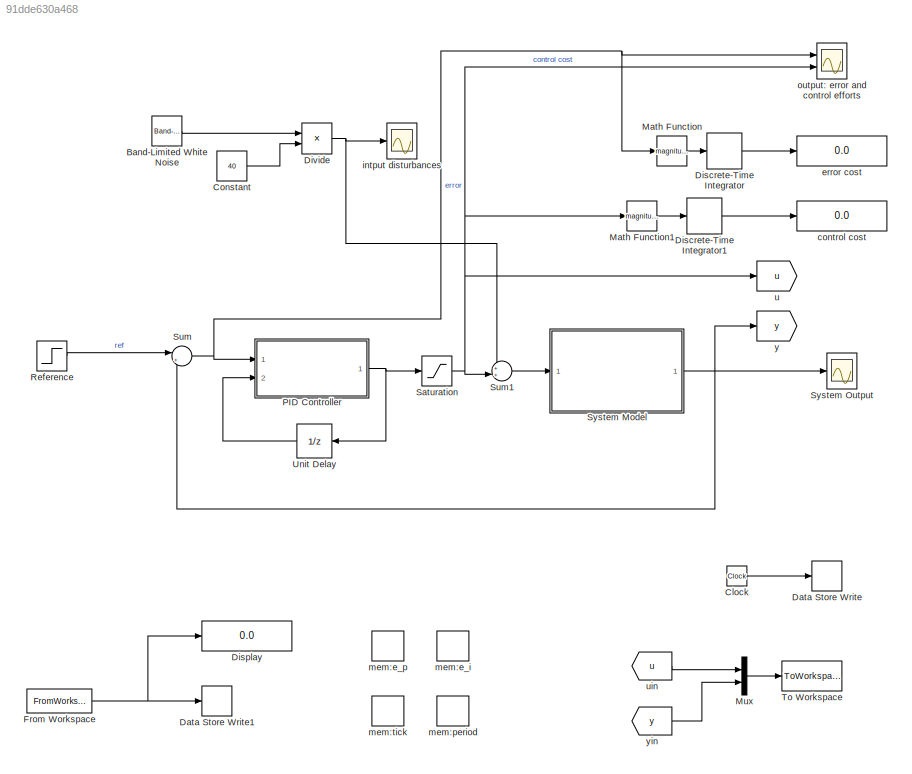
MODEL slx_91dde630a468
KIND model
CONFIG AbsTol = auto
CONFIG FixedStep = 0.001
CONFIG MaxStep = auto
CONFIG MinStep = auto
CONFIG RelTol = 1e-3
CONFIG SampleTimeConstraint = Unconstrained
CONFIG Solver = ode3
CONFIG SolverMode = Auto
CONFIG SolverName = ode3
CONFIG StartTime = 0.0
CONFIG StopTime = 10
BLOCK [Reference] Band-Limited White Noise  REF=simulink/Sources/Band-Limited
White Noise
  Cov = simu_noise_power
  Ports = [0, 1]
  SourceBlock = simulink/Sources/Band-Limited\nWhite Noise
  SourceType = Band-Limited White Noise.
  Ts = 0.001
  VectorParams1D = on
  seed = simu_noise_seed
BLOCK [Clock] Clock
BLOCK [Constant] Constant
  Value = 40
BLOCK [DataStoreWrite] Data Store Write
  DataStoreName = tick
  Ports = [1]
  SampleTime = 0.001
BLOCK [DataStoreWrite] Data Store Write1
  DataStoreName = period
  Ports = [1]
  SampleTime = 0.001
BLOCK [DiscreteIntegrator] Discrete-Time Integrator
  InitialConditionSetting = State (most efficient)
  Ports = [1, 1]
  SampleTime = 0.001
BLOCK [DiscreteIntegrator] Discrete-Time Integrator1
  InitialConditionSetting = State (most efficient)
  Ports = [1, 1]
  SampleTime = 0.001
BLOCK [Display] Display
  Decimation = 1
  Ports = [1]
BLOCK [Product] Divide
  InputSameDT = off
  Inputs = */
  OutDataTypeStr = Inherit: Inherit via internal rule
  Ports = [2, 1]
  RndMeth = Floor
  SaturateOnIntegerOverflow = off
BLOCK [FromWorkspace] From Workspace
  SampleTime = 0
  VariableName = simin
  ZeroCross = on
BLOCK [Math] Math Function
  Operator = magnitude^2
  Ports = [1, 1]
BLOCK [Math] Math Function1
  Operator = magnitude^2
  Ports = [1, 1]
BLOCK [Mux] Mux
  DisplayOption = bar
  Inputs = 2
  Ports = [2, 1]
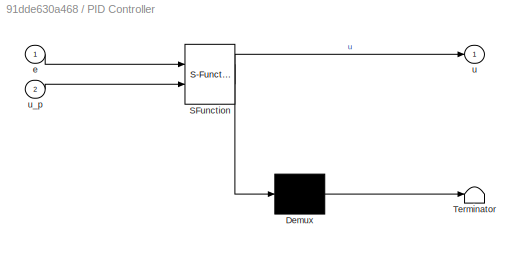
BLOCK [SubSystem] PID Controller
  ErrorFcn = Stateflow.Translate.translate
  PermitHierarchicalResolution = ExplicitOnly
  Ports = [2, 1]
  RequestExecContextInheritance = off
  SFBlockType = MATLAB Function
  TreatAsAtomicUnit = on
BLOCK [Demux] PID Controller/ Demux 
  Outputs = 1
  Ports = [1, 1]
BLOCK [S-Function] PID Controller/ SFunction 
  EnableBusSupport = on
  FunctionName = sf_sfun
  PortCounts = [2 2]
  Ports = [2, 2]
  Tag = Stateflow S-Function main_system 2
BLOCK [Terminator] PID Controller/ Terminator 
BLOCK [Inport] PID Controller/e
  IconDisplay = Port number
BLOCK [Outport] PID Controller/u
  IconDisplay = Port number
BLOCK [Inport] PID Controller/u_p
  IconDisplay = Port number
  Port = 2
BLOCK [Step] Reference
  SampleTime = 0
  Time = 0
BLOCK [Saturate] Saturation
  InputPortMap = u0
  LowerLimit = -12
  Ports = [1, 1]
  UpperLimit = +12
BLOCK [Sum] Sum
  IconShape = round
  InputSameDT = off
  Inputs = |+-
  OutDataTypeStr = Inherit: Inherit via internal rule
  Ports = [2, 1]
  SaturateOnIntegerOverflow = off
BLOCK [Sum] Sum1
  IconShape = round
  InputSameDT = off
  Inputs = ++|
  OutDataTypeStr = Inherit: Inherit via internal rule
  Ports = [2, 1]
  SaturateOnIntegerOverflow = off
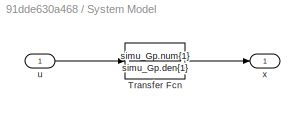
BLOCK [SubSystem] System Model
  Ports = [1, 1]
  RequestExecContextInheritance = off
BLOCK [TransferFcn] System Model/Transfer Fcn
  Denominator = simu_Gp.den{1}
  Numerator = simu_Gp.num{1}
BLOCK [Inport] System Model/u
  IconDisplay = Port number
BLOCK [Outport] System Model/x
  IconDisplay = Port number
BLOCK [Scope] System Output
  DataFormat = StructureWithTime
  Floating = off
  LimitDataPoints = off
  MaxDataPoints = 10000
  NumInputPorts = 1
  Ports = [1]
  SampleTime = 0
  TickLabels = on
  TimeRange = 10
  YMax = 1.4
  YMin = -0.4
  ZoomMode = xonly
BLOCK [ToWorkspace] To Workspace
  FixptAsFi = on
  MaxDataPoints = inf
  Ports = [1]
  SampleTime = -1
  Save2DSignal = 3-D array (concatenate along third dimension)
  SaveFormat = Timeseries
  VariableName = simout
BLOCK [UnitDelay] Unit Delay
  InputProcessing = Elements as channels (sample based)
  SampleTime = -1
BLOCK [Display] control cost
  Decimation = 1
  Ports = [1]
BLOCK [Display] error cost
  Decimation = 1
  Ports = [1]
BLOCK [Scope] intput disturbances
  DataFormat = StructureWithTime
  Floating = off
  LimitDataPoints = off
  MaxDataPoints = 10000
  NumInputPorts = 1
  Ports = [1]
  SampleTime = 0
  SaveName = ScopeData2
  TickLabels = on
  TimeRange = 10
  YMax = 40
  YMin = -40
  ZoomMode = xonly
BLOCK [DataStoreMemory] mem:e_i
  DataStoreName = e_i
  OutDataTypeStr = double
  SignalType = real
BLOCK [DataStoreMemory] mem:e_p
  DataStoreName = e_p
  OutDataTypeStr = double
  SignalType = real
BLOCK [DataStoreMemory] mem:period
  DataStoreName = period
  OutDataTypeStr = double
  SignalType = real
BLOCK [DataStoreMemory] mem:tick
  DataStoreName = tick
  OutDataTypeStr = double
  SignalType = real
BLOCK [Scope] output: error and control efforts
  DataFormat = StructureWithTime
  Floating = off
  LimitDataPoints = off
  MaxDataPoints = 10000
  NumInputPorts = 2
  Ports = [2]
  SampleTime = 0
  SaveName = ScopeData1
  TickLabels = on
  TimeRange = 3
  YMax = 1.95~5
  YMin = 0.95~-5
BLOCK [Goto] u
  GotoTag = u
BLOCK [From] uin
  GotoTag = u
BLOCK [Goto] y
  GotoTag = y
BLOCK [From] yin
  GotoTag = y
LINE Band-Limited White Noise:1 -> Divide:1
LINE Clock:1 -> Data Store Write:1
LINE Constant:1 -> Divide:2
LINE Discrete-Time Integrator1:1 -> control cost:1
LINE Discrete-Time Integrator:1 -> error cost:1
NET Divide:1 -> Sum1:1, intput disturbances:1
NET From Workspace:1 -> Data Store Write1:1, Display:1
LINE Math Function1:1 -> Discrete-Time Integrator1:1
LINE Math Function:1 -> Discrete-Time Integrator:1
LINE Mux:1 -> To Workspace:1
NET PID Controller:1 -> Saturation:1, Unit Delay:1
LINE Reference:1 -> Sum:1
NET Saturation:1 -> Math Function1:1, Sum1:2, output: error and control efforts:2, u:1
LINE Sum1:1 -> System Model:1
NET Sum:1 -> Math Function:1, PID Controller:1, output: error and control efforts:1
LINE System Model/Transfer Fcn:1 -> System Model/x:1
LINE System Model/u:1 -> System Model/Transfer Fcn:1
NET System Model:1 -> Sum:2, System Output:1, y:1
LINE Unit Delay:1 -> PID Controller:2
LINE uin:1 -> Mux:1
LINE yin:1 -> Mux:2
note: NET lines group one-source signal fan-out (src -> all destinations, sorted); 1:1 wires keep LINE
CHART PID Controller states=1 transitions=1
  STATE_LABEL 'eML_blk_kernel()'
  STATE_LABEL 'SCRIPT:\nfunction u = fcn(e, u_p)\n\n% parameters\nsimu_step = 0.001;      % simulation step\n\n% global variables\nglobal tick;\nglobal e_p;             % previous error\nglobal e_i;             % integrated error\nglobal period;\n\n% integrated error\ne_i = e_i + e * period;\n\nif ( mod(tick, period) <= simu_step )\n    u = 10 * e + 5 * e_i + 0 * ((e - e_p) / period);\nelse\n    u = u_p;\nend\n\ne_p = e;\n'
